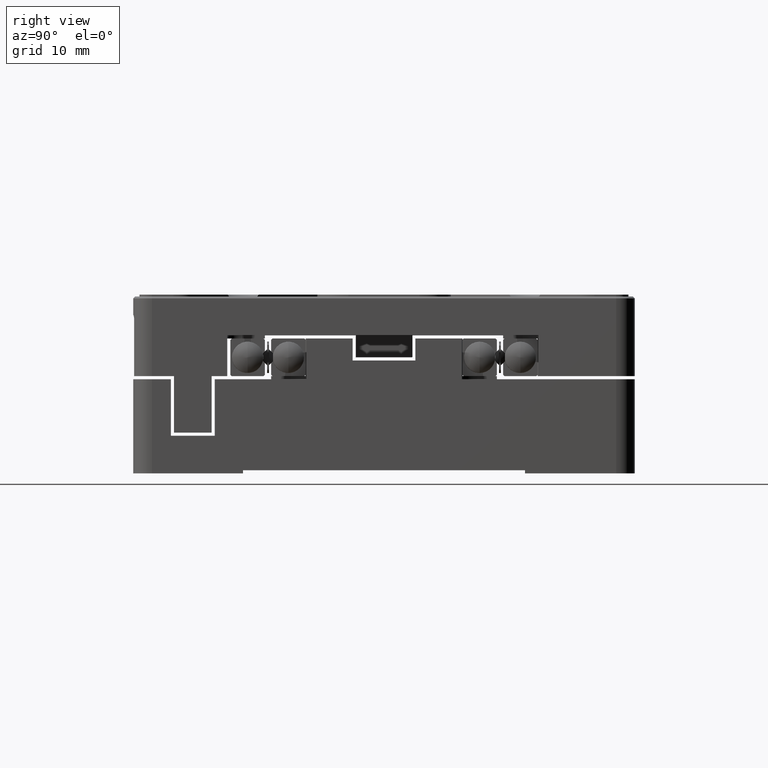
[diagram: clean part render]
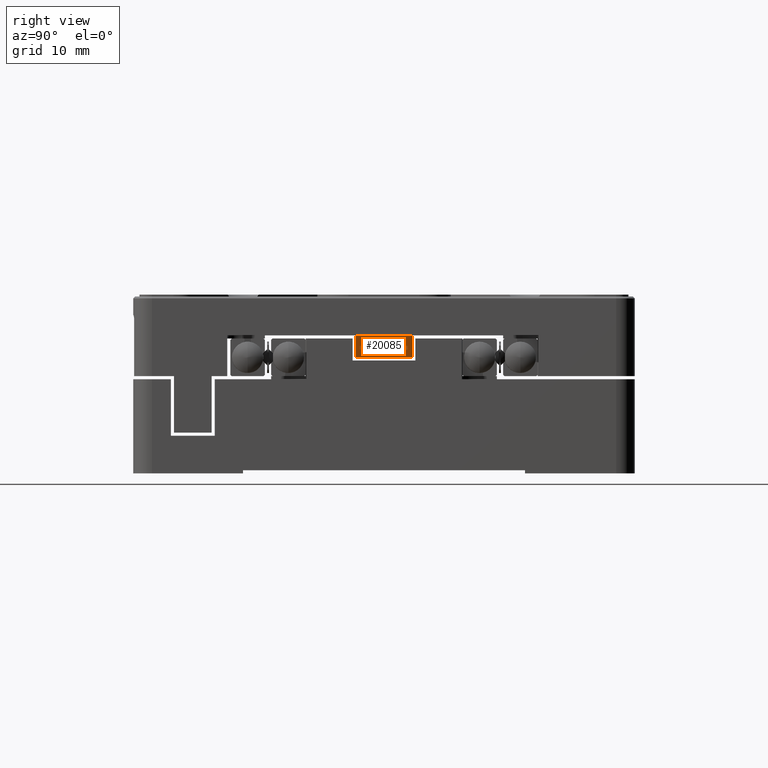
[diagram: same view with one face highlighted and labeled with its STEP entity id]
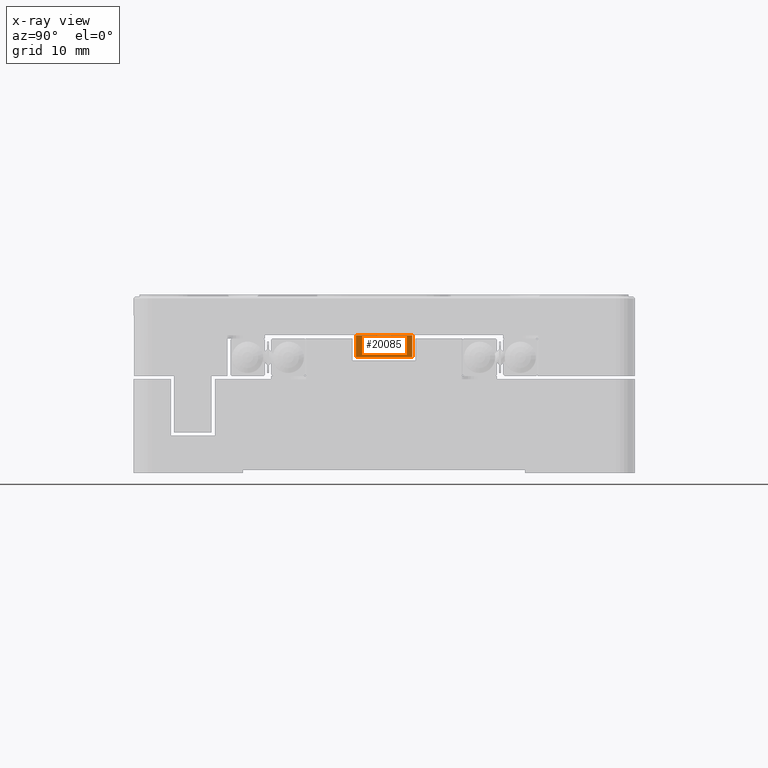
[diagram: x-ray of the same camera — body ghosted, the highlighted face saturated]
A machine part, right view. The second image highlights one B-rep face of the part: STEP entity #20085.
The next image is the same camera in x-ray: the body ghosted, the highlighted face saturated — about 0% of this face is hidden behind the body in this view.
In plain terms, the highlighted planar face has unit normal (-1, 0, 0).
Its self-contained STEP definition (entity closure, byte-faithful):
#1655 = CARTESIAN_POINT ( 'NONE',  ( 5.000000000000000000, -40.00000000000000000, 7.000000000000000000 ) ) ;
#2027 = VERTEX_POINT ( 'NONE', #28406 ) ;
#2440 = DIRECTION ( 'NONE',  ( -1.000000000000000000, 0.000000000000000000, 0.000000000000000000 ) ) ;
#4626 = AXIS2_PLACEMENT_3D ( 'NONE', #26709, #2440, #22870 ) ;
#4697 = LINE ( 'NONE', #7195, #11376 ) ;
#4767 = VERTEX_POINT ( 'NONE', #7453 ) ;
#6740 = EDGE_LOOP ( 'NONE', ( #12421, #17936, #17086, #24302 ) ) ;
#7078 = VERTEX_POINT ( 'NONE', #10345 ) ;
#7195 = CARTESIAN_POINT ( 'NONE',  ( 5.000000000000000000, -4.500000000000000000, 3.500000000000000000 ) ) ;
#7453 = CARTESIAN_POINT ( 'NONE',  ( 5.000000000000000000, 4.500000000000000000, 3.500000000000000000 ) ) ;
#7645 = CARTESIAN_POINT ( 'NONE',  ( 5.000000000000000000, -4.500000000000000000, 7.000000000000000000 ) ) ;
#8662 = CARTESIAN_POINT ( 'NONE',  ( 5.000000000000000000, 4.500000000000000000, 3.500000000000000000 ) ) ;
#9260 = DIRECTION ( 'NONE',  ( 0.000000000000000000, -1.000000000000000000, 0.000000000000000000 ) ) ;
#10345 = CARTESIAN_POINT ( 'NONE',  ( 5.000000000000000000, 4.500000000000000000, 7.000000000000000000 ) ) ;
#11376 = VECTOR ( 'NONE', #9260, 1000.000000000000000 ) ;
#12421 = ORIENTED_EDGE ( 'NONE', *, *, #26764, .F. ) ;
#12640 = DIRECTION ( 'NONE',  ( 0.000000000000000000, 0.000000000000000000, -1.000000000000000000 ) ) ;
#12797 = DIRECTION ( 'NONE',  ( 0.000000000000000000, 0.000000000000000000, 1.000000000000000000 ) ) ;
#13626 = FACE_OUTER_BOUND ( 'NONE', #6740, .T. ) ;
#15293 = LINE ( 'NONE', #8662, #17491 ) ;
#15333 = LINE ( 'NONE', #1655, #18671 ) ;
#17086 = ORIENTED_EDGE ( 'NONE', *, *, #22967, .F. ) ;
#17243 = DIRECTION ( 'NONE',  ( 0.000000000000000000, 1.000000000000000000, 0.000000000000000000 ) ) ;
#17491 = VECTOR ( 'NONE', #12640, 1000.000000000000000 ) ;
#17936 = ORIENTED_EDGE ( 'NONE', *, *, #19395, .F. ) ;
#18671 = VECTOR ( 'NONE', #17243, 1000.000000000000000 ) ;
#19395 = EDGE_CURVE ( 'NONE', #28370, #7078, #15333, .T. ) ;
#20085 = ADVANCED_FACE ( 'NONE', ( #13626 ), #26865, .F. ) ;
#21303 = CARTESIAN_POINT ( 'NONE',  ( 5.000000000000000000, -4.500000000000000000, 7.000000000000000000 ) ) ;
#22870 = DIRECTION ( 'NONE',  ( 0.000000000000000000, 0.000000000000000000, 1.000000000000000000 ) ) ;
#22967 = EDGE_CURVE ( 'NONE', #2027, #28370, #25725, .T. ) ;
#23035 = VECTOR ( 'NONE', #12797, 1000.000000000000000 ) ;
#24302 = ORIENTED_EDGE ( 'NONE', *, *, #26499, .F. ) ;
#25725 = LINE ( 'NONE', #21303, #23035 ) ;
#26499 = EDGE_CURVE ( 'NONE', #4767, #2027, #4697, .T. ) ;
#26709 = CARTESIAN_POINT ( 'NONE',  ( 5.000000000000000000, -4.500000000000000000, 3.500000000000000000 ) ) ;
#26764 = EDGE_CURVE ( 'NONE', #7078, #4767, #15293, .T. ) ;
#26865 = PLANE ( 'NONE',  #4626 ) ;
#28370 = VERTEX_POINT ( 'NONE', #7645 ) ;
#28406 = CARTESIAN_POINT ( 'NONE',  ( 5.000000000000000000, -4.500000000000000000, 3.500000000000000000 ) ) ;